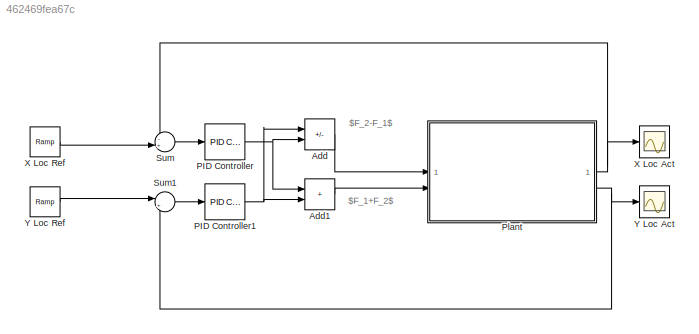
MODEL slx_462469fea67c
KIND model
CONFIG AbsTol = auto
CONFIG EnableMultiTasking = off
CONFIG FixedStep = auto
CONFIG MaxStep = auto
CONFIG MinStep = auto
CONFIG RelTol = auto
CONFIG SampleTimeConstraint = Unconstrained
CONFIG SolverName = VariableStepAuto
CONFIG StartTime = 0.0
CONFIG StopTime = 100
BLOCK [Sum] Add
  IconShape = rectangular
  Inputs = +-
BLOCK [Sum] Add1
  IconShape = rectangular
BLOCK [Reference] PID Controller  REF=slpidlib/PID Controller
  LibrarySourceBlock = simulink/Continuous/PID Controller
  SourceBlock = slpidlib/PID Controller
  SourceType = PID 1dof
BLOCK [Reference] PID Controller1  REF=slpidlib/PID Controller
  LibrarySourceBlock = simulink/Continuous/PID Controller
  SourceBlock = slpidlib/PID Controller
  SourceType = PID 1dof
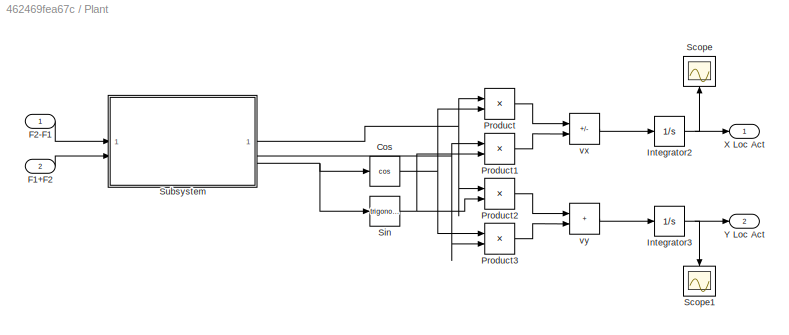
BLOCK [SubSystem] Plant
BLOCK [Trigonometry] Plant/Cos
  Operator = cos
BLOCK [Inport] Plant/F1+F2
  Port = 2
BLOCK [Inport] Plant/F2-F1
BLOCK [Integrator] Plant/Integrator2
BLOCK [Integrator] Plant/Integrator3
BLOCK [Product] Plant/Product
BLOCK [Product] Plant/Product1
BLOCK [Product] Plant/Product2
BLOCK [Product] Plant/Product3
BLOCK [Scope] Plant/Scope
  Floating = off
  NameLocation = right
  NumInputPorts = 1
  ScopeSpecificationString = Simulink.scopes.TimeScopeBlockCfg('CurrentConfiguration', extmgr.ConfigurationSet(extmgr.Configuration('Core','General UI',true),extmgr.Configuration('Core','Source UI',true),extmgr.Configuration('Sources','WiredSimulink',true,'DataLoggingVariableName','ScopeData6'),extmgr.Configuration('Visuals','Time Domain',true,'SerializedDisplays',{struct('MinYLimReal','-1.43982','MaxYLimReal','12.929','YLabe...<+1434ch>
BLOCK [Scope] Plant/Scope1
  Floating = off
  NameLocation = left
  NumInputPorts = 1
  ScopeSpecificationString = Simulink.scopes.TimeScopeBlockCfg('CurrentConfiguration', extmgr.ConfigurationSet(extmgr.Configuration('Core','General UI',true),extmgr.Configuration('Core','Source UI',true),extmgr.Configuration('Sources','WiredSimulink',true,'DataLoggingVariableName','ScopeData7'),extmgr.Configuration('Visuals','Time Domain',true,'SerializedDisplays',{struct('MinYLimReal','-0.0331','MaxYLimReal','0.29635','YLabe...<+1436ch>
BLOCK [Trigonometry] Plant/Sin
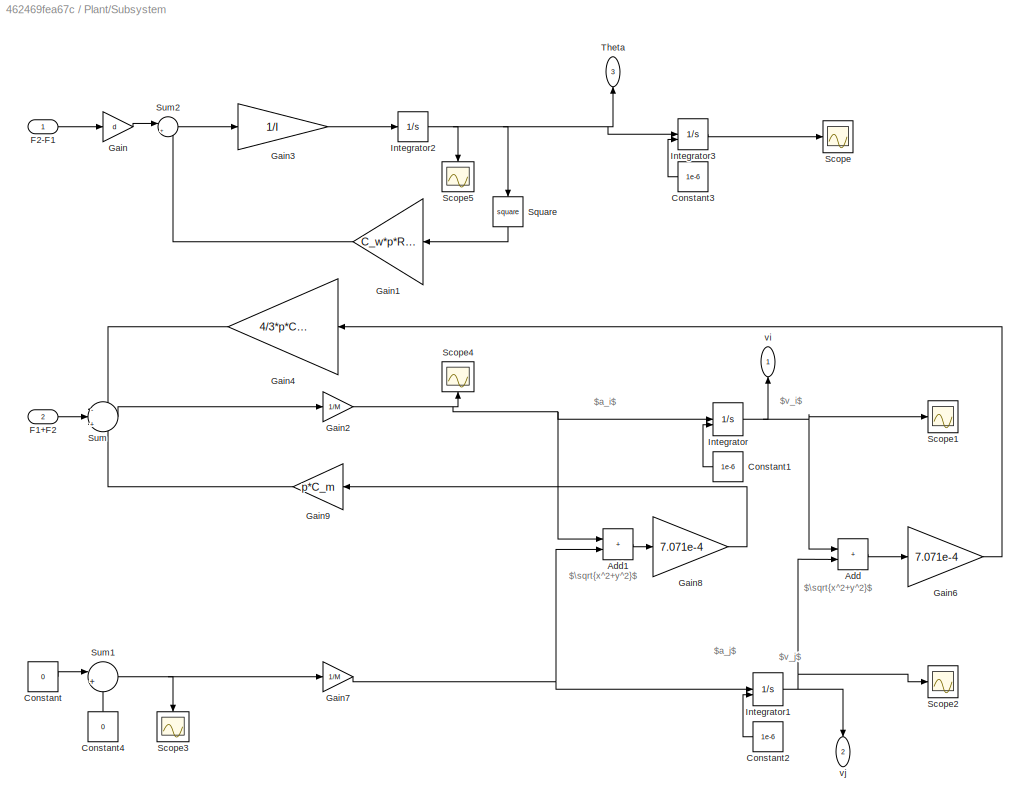
BLOCK [SubSystem] Plant/Subsystem
BLOCK [Sum] Plant/Subsystem/Add
  IconShape = rectangular
BLOCK [Sum] Plant/Subsystem/Add1
  IconShape = rectangular
BLOCK [Constant] Plant/Subsystem/Constant
  Value = 0
BLOCK [Constant] Plant/Subsystem/Constant1
  NameLocation = top
  Value = 1e-6
BLOCK [Constant] Plant/Subsystem/Constant2
  NameLocation = top
  Value = 1e-6
BLOCK [Constant] Plant/Subsystem/Constant3
  NameLocation = top
  Value = 1e-6
BLOCK [Constant] Plant/Subsystem/Constant4
  NameLocation = right
  Value = 0
BLOCK [Inport] Plant/Subsystem/F1+F2
  Port = 2
BLOCK [Inport] Plant/Subsystem/F2-F1
BLOCK [Gain] Plant/Subsystem/Gain
  Gain = d
BLOCK [Gain] Plant/Subsystem/Gain1
  Gain = C_w*p*R^5
  NameLocation = top
BLOCK [Gain] Plant/Subsystem/Gain2
  Gain = 1/M
BLOCK [Gain] Plant/Subsystem/Gain3
  Gain = 1/I
BLOCK [Gain] Plant/Subsystem/Gain4
  Gain = 4/3*p*C_D*2*R
  NameLocation = top
BLOCK [Gain] Plant/Subsystem/Gain6
  Gain = 7.071e-4
BLOCK [Gain] Plant/Subsystem/Gain7
  Gain = 1/M
BLOCK [Gain] Plant/Subsystem/Gain8
  Gain = 7.071e-4
BLOCK [Gain] Plant/Subsystem/Gain9
  Gain = p*C_m
  NameLocation = top
BLOCK [Integrator] Plant/Subsystem/Integrator
  InitialConditionSource = external
BLOCK [Integrator] Plant/Subsystem/Integrator1
  InitialConditionSource = external
BLOCK [Integrator] Plant/Subsystem/Integrator2
BLOCK [Integrator] Plant/Subsystem/Integrator3
  InitialConditionSource = external
BLOCK [Scope] Plant/Subsystem/Scope
  Floating = off
  NumInputPorts = 1
  ScopeSpecificationString = Simulink.scopes.TimeScopeBlockCfg('CurrentConfiguration', extmgr.ConfigurationSet(extmgr.Configuration('Core','General UI',true),extmgr.Configuration('Core','Source UI',true),extmgr.Configuration('Sources','WiredSimulink',true),extmgr.Configuration('Visuals','Time Domain',true,'SerializedDisplays',{struct('MinYLimReal','-80029986725491952844800.00000','MaxYLimReal','720269880529427726598144.00000'...<+1577ch>
BLOCK [Scope] Plant/Subsystem/Scope1
  Floating = off
  NumInputPorts = 1
  ScopeSpecificationString = Simulink.scopes.TimeScopeBlockCfg('CurrentConfiguration', extmgr.ConfigurationSet(extmgr.Configuration('Core','General UI',true),extmgr.Configuration('Core','Source UI',true),extmgr.Configuration('Sources','WiredSimulink',true,'DataLoggingVariableName','ScopeData1'),extmgr.Configuration('Visuals','Time Domain',true,'SerializedDisplays',{struct('MinYLimReal','-0.0281','MaxYLimReal','0.25288','YLabe...<+1419ch>
BLOCK [Scope] Plant/Subsystem/Scope2
  Floating = off
  NumInputPorts = 1
  ScopeSpecificationString = Simulink.scopes.TimeScopeBlockCfg('CurrentConfiguration', extmgr.ConfigurationSet(extmgr.Configuration('Core','General UI',true),extmgr.Configuration('Core','Source UI',true),extmgr.Configuration('Sources','WiredSimulink',true,'DataLoggingVariableName','ScopeData2'),extmgr.Configuration('Visuals','Time Domain',true,'SerializedDisplays',{struct('MinYLimReal','0.0000009','MaxYLimReal','0.0000011','Y...<+1436ch>
BLOCK [Scope] Plant/Subsystem/Scope3
  Floating = off
  NameLocation = left
  NumInputPorts = 1
  ScopeSpecificationString = Simulink.scopes.TimeScopeBlockCfg('CurrentConfiguration', extmgr.ConfigurationSet(extmgr.Configuration('Core','General UI',true),extmgr.Configuration('Core','Source UI',true),extmgr.Configuration('Sources','WiredSimulink',true,'DataLoggingVariableName','ScopeData3'),extmgr.Configuration('Visuals','Time Domain',true,'SerializedDisplays',{struct('MinYLimReal','-1.00000','MaxYLimReal','1.00000','YLab...<+1466ch>
BLOCK [Scope] Plant/Subsystem/Scope4
  Floating = off
  NameLocation = right
  NumInputPorts = 1
  ScopeSpecificationString = Simulink.scopes.TimeScopeBlockCfg('CurrentConfiguration', extmgr.ConfigurationSet(extmgr.Configuration('Core','General UI',true),extmgr.Configuration('Core','Source UI',true),extmgr.Configuration('Sources','WiredSimulink',true,'DataLoggingVariableName','ScopeData4'),extmgr.Configuration('Visuals','Time Domain',true,'SerializedDisplays',{struct('MinYLimReal','-10','MaxYLimReal','10','YLabelReal',''...<+832ch>
BLOCK [Scope] Plant/Subsystem/Scope5
  Floating = off
  NameLocation = left
  NumInputPorts = 1
  ScopeSpecificationString = Simulink.scopes.TimeScopeBlockCfg('CurrentConfiguration', extmgr.ConfigurationSet(extmgr.Configuration('Core','General UI',true),extmgr.Configuration('Core','Source UI',true),extmgr.Configuration('Sources','WiredSimulink',true,'DataLoggingVariableName','ScopeData5'),extmgr.Configuration('Visuals','Time Domain',true,'SerializedDisplays',{struct('MinYLimReal','-4.15696','MaxYLimReal','37.41268','YLa...<+1442ch>
BLOCK [Math] Plant/Subsystem/Square
  NameLocation = left
  Operator = square
BLOCK [Sum] Plant/Subsystem/Sum
  Inputs = -|+|-
BLOCK [Sum] Plant/Subsystem/Sum1
  Inputs = |++
BLOCK [Sum] Plant/Subsystem/Sum2
  Inputs = |+-
BLOCK [Outport] Plant/Subsystem/Theta
  NameLocation = right
  Port = 3
BLOCK [Outport] Plant/Subsystem/vi
  NameLocation = right
BLOCK [Outport] Plant/Subsystem/vj
  NameLocation = left
  Port = 2
BLOCK [Outport] Plant/X Loc Act
BLOCK [Outport] Plant/Y Loc Act
  Port = 2
BLOCK [Sum] Plant/vx
  IconShape = rectangular
  Inputs = +-
BLOCK [Sum] Plant/vy
  IconShape = rectangular
BLOCK [Sum] Sum
  Inputs = -+|
BLOCK [Sum] Sum1
  Inputs = |+-
BLOCK [Scope] X Loc Act
  Floating = off
  NumInputPorts = 1
  ScopeSpecificationString = Simulink.scopes.TimeScopeBlockCfg('CurrentConfiguration', extmgr.ConfigurationSet(extmgr.Configuration('Core','General UI',true),extmgr.Configuration('Core','Source UI',true),extmgr.Configuration('Sources','WiredSimulink',true,'DataLoggingVariableName','ScopeData8'),extmgr.Configuration('Visuals','Time Domain',true,'SerializedDisplays',{struct('MinYLimReal','-0.39676','MaxYLimReal','3.56889','YLab...<+1423ch>
BLOCK [Reference] X Loc Ref  REF=simulink/Sources/Ramp
  SourceBlock = simulink/Sources/Ramp
  SourceType = Ramp
BLOCK [Scope] Y Loc Act
  Floating = off
  NumInputPorts = 1
  ScopeSpecificationString = Simulink.scopes.TimeScopeBlockCfg('CurrentConfiguration', extmgr.ConfigurationSet(extmgr.Configuration('Core','General UI',true),extmgr.Configuration('Core','Source UI',true),extmgr.Configuration('Sources','WiredSimulink',true,'DataLoggingVariableName','ScopeData9'),extmgr.Configuration('Visuals','Time Domain',true,'SerializedDisplays',{struct('MinYLimReal','-0.87581','MaxYLimReal','7.88205','YLab...<+1423ch>
BLOCK [Reference] Y Loc Ref  REF=simulink/Sources/Ramp
  SourceBlock = simulink/Sources/Ramp
  SourceType = Ramp
ANNOTATION (root): $F_2-F_1$
ANNOTATION (root): $F_1+F_2$
ANNOTATION Plant/Subsystem: $\sqrt{x^2+y^2}$
ANNOTATION Plant/Subsystem: $a_i$
ANNOTATION Plant/Subsystem: $a_j$
ANNOTATION Plant/Subsystem: $v_i$
ANNOTATION Plant/Subsystem: $v_j$
LINE Add1:1 -> Plant:2
LINE Add:1 -> Plant:1
NET PID Controller1:1 -> Add1:2, Add:1
NET PID Controller:1 -> Add1:1, Add:2
NET Plant/Cos:1 -> Plant/Product3:1, Plant/Product:2
LINE Plant/F1+F2:1 -> Plant/Subsystem:2
LINE Plant/F2-F1:1 -> Plant/Subsystem:1
NET Plant/Integrator2:1 -> Plant/Scope:1, Plant/X Loc Act:1
NET Plant/Integrator3:1 -> Plant/Scope1:1, Plant/Y Loc Act:1
LINE Plant/Product1:1 -> Plant/vx:2
LINE Plant/Product2:1 -> Plant/vy:1
LINE Plant/Product3:1 -> Plant/vy:2
LINE Plant/Product:1 -> Plant/vx:1
NET Plant/Sin:1 -> Plant/Product1:2, Plant/Product2:2
LINE Plant/Subsystem/Add1:1 -> Plant/Subsystem/Gain8:1
LINE Plant/Subsystem/Add:1 -> Plant/Subsystem/Gain6:1
LINE Plant/Subsystem/Constant1:1 -> Plant/Subsystem/Integrator:2
LINE Plant/Subsystem/Constant2:1 -> Plant/Subsystem/Integrator1:2
LINE Plant/Subsystem/Constant3:1 -> Plant/Subsystem/Integrator3:2
LINE Plant/Subsystem/Constant4:1 -> Plant/Subsystem/Sum1:2
LINE Plant/Subsystem/Constant:1 -> Plant/Subsystem/Sum1:1
LINE Plant/Subsystem/F1+F2:1 -> Plant/Subsystem/Sum:2
LINE Plant/Subsystem/F2-F1:1 -> Plant/Subsystem/Gain:1
LINE Plant/Subsystem/Gain1:1 -> Plant/Subsystem/Sum2:2
NET Plant/Subsystem/Gain2:1 -> Plant/Subsystem/Add1:1, Plant/Subsystem/Integrator:1, Plant/Subsystem/Scope4:1
LINE Plant/Subsystem/Gain3:1 -> Plant/Subsystem/Integrator2:1
LINE Plant/Subsystem/Gain4:1 -> Plant/Subsystem/Sum:1
LINE Plant/Subsystem/Gain6:1 -> Plant/Subsystem/Gain4:1
NET Plant/Subsystem/Gain7:1 -> Plant/Subsystem/Add1:2, Plant/Subsystem/Integrator1:1
LINE Plant/Subsystem/Gain8:1 -> Plant/Subsystem/Gain9:1
LINE Plant/Subsystem/Gain9:1 -> Plant/Subsystem/Sum:3
LINE Plant/Subsystem/Gain:1 -> Plant/Subsystem/Sum2:1
NET Plant/Subsystem/Integrator1:1 -> Plant/Subsystem/Add:2, Plant/Subsystem/Scope2:1, Plant/Subsystem/vj:1
NET Plant/Subsystem/Integrator2:1 -> Plant/Subsystem/Integrator3:1, Plant/Subsystem/Scope5:1, Plant/Subsystem/Square:1, Plant/Subsystem/Theta:1
LINE Plant/Subsystem/Integrator3:1 -> Plant/Subsystem/Scope:1
NET Plant/Subsystem/Integrator:1 -> Plant/Subsystem/Add:1, Plant/Subsystem/Scope1:1, Plant/Subsystem/vi:1
LINE Plant/Subsystem/Square:1 -> Plant/Subsystem/Gain1:1
NET Plant/Subsystem/Sum1:1 -> Plant/Subsystem/Gain7:1, Plant/Subsystem/Scope3:1
LINE Plant/Subsystem/Sum2:1 -> Plant/Subsystem/Gain3:1
LINE Plant/Subsystem/Sum:1 -> Plant/Subsystem/Gain2:1
NET Plant/Subsystem:1 -> Plant/Product2:1, Plant/Product:1
NET Plant/Subsystem:2 -> Plant/Product1:1, Plant/Product3:2
NET Plant/Subsystem:3 -> Plant/Cos:1, Plant/Sin:1
LINE Plant/vx:1 -> Plant/Integrator2:1
LINE Plant/vy:1 -> Plant/Integrator3:1
NET Plant:1 -> Sum:1, X Loc Act:1
NET Plant:2 -> Sum1:2, Y Loc Act:1
LINE Sum1:1 -> PID Controller1:1
LINE Sum:1 -> PID Controller:1
LINE X Loc Ref:1 -> Sum:2
LINE Y Loc Ref:1 -> Sum1:1
note: NET lines group one-source signal fan-out (src -> all destinations, sorted); 1:1 wires keep LINE
